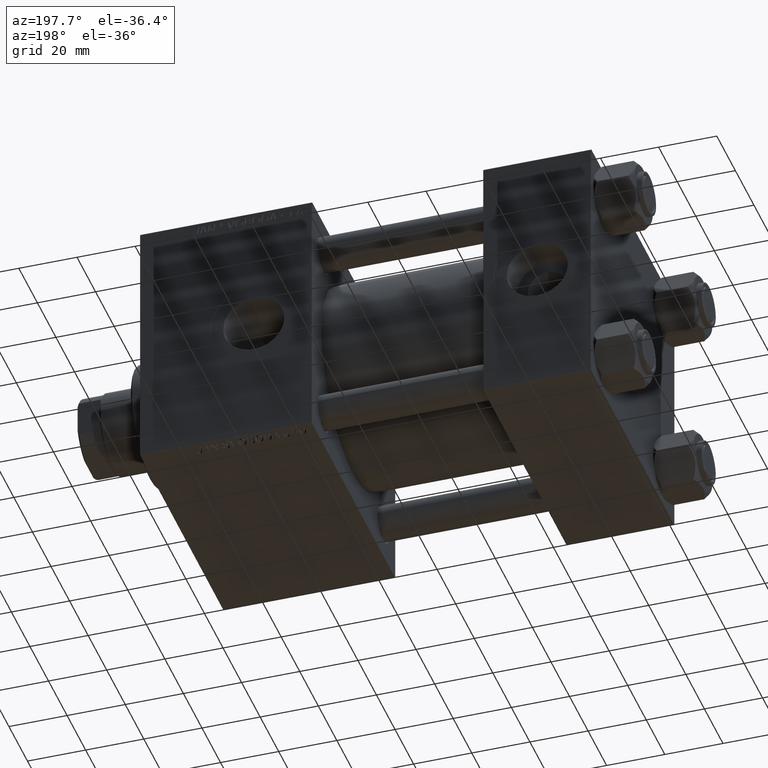
[diagram: clean part render]
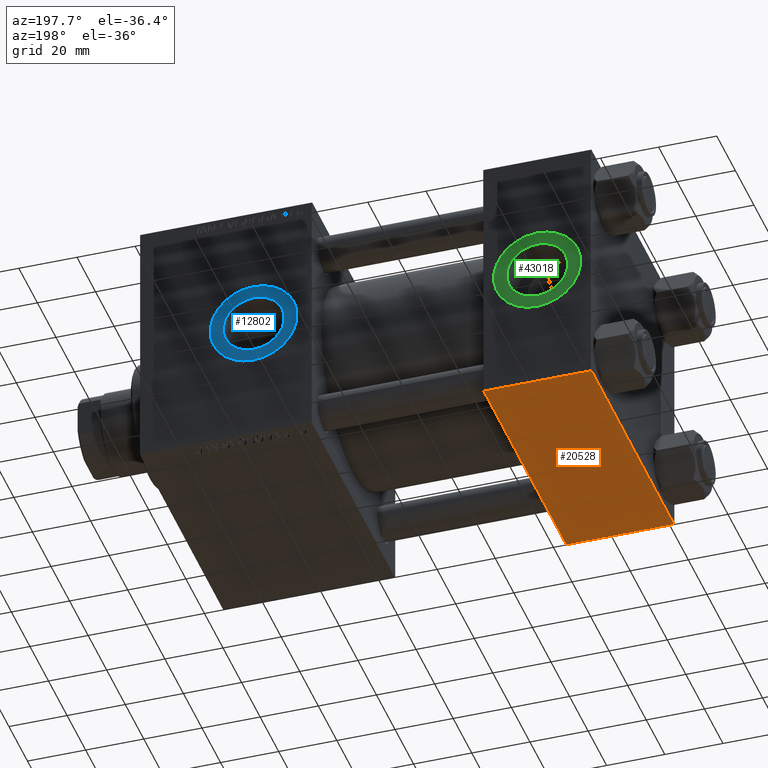
[diagram: same view with three faces highlighted in distinct colors, each labeled with its STEP entity id]
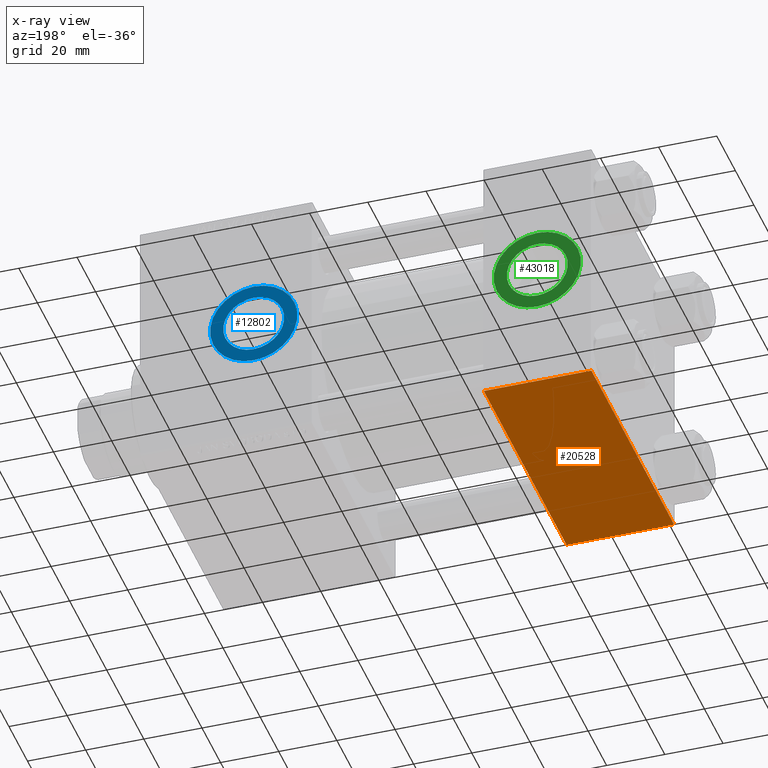
[diagram: x-ray of the same camera — body ghosted, the three highlighted faces saturated]
A machine part, auxiliary view with three faces highlighted in distinct colors.
The next image is the same camera in x-ray (body ghosted, the three faces saturated) — at least one of them is partly hidden behind the body in this view.
Their STEP definitions:

[orange] entity #20528 — the highlighted planar face has unit normal (0, 0, -1).
#557 = DIRECTION ( 'NONE',  ( -1.000000000000000000, 0.000000000000000000, 0.000000000000000000 ) ) ;
#879 = ORIENTED_EDGE ( 'NONE', *, *, #21745, .T. ) ;
#4583 = LINE ( 'NONE', #27667, #48616 ) ;
#7368 = LINE ( 'NONE', #10942, #8276 ) ;
#7626 = EDGE_CURVE ( 'NONE', #25748, #28701, #7368, .T. ) ;
#8276 = VECTOR ( 'NONE', #30725, 1000.000000000000000 ) ;
#8909 = LINE ( 'NONE', #27965, #47977 ) ;
#9617 = CARTESIAN_POINT ( 'NONE',  ( 0.000000000000000000, -44.49999999999994316, -45.00000000000000000 ) ) ;
#10942 = CARTESIAN_POINT ( 'NONE',  ( 37.00000000000000000, 45.00000000000000000, -44.99999999999999289 ) ) ;
#13850 = VECTOR ( 'NONE', #34388, 1000.000000000000000 ) ;
#14016 = CARTESIAN_POINT ( 'NONE',  ( 37.00000000000000000, 44.50000000000000000, -44.99999999999999289 ) ) ;
#16036 = ORIENTED_EDGE ( 'NONE', *, *, #7626, .T. ) ;
#16260 = PLANE ( 'NONE',  #21955 ) ;
#17073 = EDGE_CURVE ( 'NONE', #27114, #17296, #4583, .T. ) ;
#17296 = VERTEX_POINT ( 'NONE', #9617 ) ;
#18354 = EDGE_LOOP ( 'NONE', ( #49178, #20924, #16036, #879 ) ) ;
#20528 = ADVANCED_FACE ( 'NONE', ( #24640 ), #16260, .T. ) ;
#20924 = ORIENTED_EDGE ( 'NONE', *, *, #21258, .T. ) ;
#21258 = EDGE_CURVE ( 'NONE', #27114, #25748, #42264, .T. ) ;
#21745 = EDGE_CURVE ( 'NONE', #28701, #17296, #8909, .T. ) ;
#21955 = AXIS2_PLACEMENT_3D ( 'NONE', #40158, #31760, #47522 ) ;
#24640 = FACE_OUTER_BOUND ( 'NONE', #18354, .T. ) ;
#25748 = VERTEX_POINT ( 'NONE', #14016 ) ;
#27114 = VERTEX_POINT ( 'NONE', #32961 ) ;
#27273 = CARTESIAN_POINT ( 'NONE',  ( 37.00000000000000000, 44.50000000000000000, -44.99999999999999289 ) ) ;
#27667 = CARTESIAN_POINT ( 'NONE',  ( 0.000000000000000000, 45.00000000000000000, -44.99999999999999289 ) ) ;
#27965 = CARTESIAN_POINT ( 'NONE',  ( 0.000000000000000000, -44.49999999999997158, -45.00000000000000000 ) ) ;
#28701 = VERTEX_POINT ( 'NONE', #49305 ) ;
#30725 = DIRECTION ( 'NONE',  ( 0.000000000000000000, -1.000000000000000000, -7.709882115452476934E-17 ) ) ;
#31760 = DIRECTION ( 'NONE',  ( 0.000000000000000000, 7.709882115452478166E-17, -1.000000000000000000 ) ) ;
#32961 = CARTESIAN_POINT ( 'NONE',  ( 0.000000000000000000, 44.50000000000000000, -44.99999999999999289 ) ) ;
#34388 = DIRECTION ( 'NONE',  ( 1.000000000000000000, 0.000000000000000000, 0.000000000000000000 ) ) ;
#38358 = DIRECTION ( 'NONE',  ( 0.000000000000000000, -1.000000000000000000, -7.709882115452476934E-17 ) ) ;
#40158 = CARTESIAN_POINT ( 'NONE',  ( 37.00000000000000000, 45.00000000000000000, -44.99999999999999289 ) ) ;
#42264 = LINE ( 'NONE', #27273, #13850 ) ;
#47522 = DIRECTION ( 'NONE',  ( 0.000000000000000000, 1.000000000000000000, 7.709882115452478166E-17 ) ) ;
#47977 = VECTOR ( 'NONE', #557, 1000.000000000000000 ) ;
#48616 = VECTOR ( 'NONE', #38358, 1000.000000000000000 ) ;
#49178 = ORIENTED_EDGE ( 'NONE', *, *, #17073, .F. ) ;
#49305 = CARTESIAN_POINT ( 'NONE',  ( 37.00000000000000000, -44.49999999999994316, -45.00000000000000000 ) ) ;

[blue] entity #12802 — the highlighted planar face has unit normal (0, 1, 0).
#21 = VERTEX_POINT ( 'NONE', #18347 ) ;
#1612 = EDGE_LOOP ( 'NONE', ( #24445, #43011 ) ) ;
#2690 = DIRECTION ( 'NONE',  ( 0.000000000000000000, 1.000000000000000000, 0.000000000000000000 ) ) ;
#3077 = DIRECTION ( 'NONE',  ( 0.000000000000000000, 1.000000000000000000, 0.000000000000000000 ) ) ;
#6247 = FACE_OUTER_BOUND ( 'NONE', #24860, .T. ) ;
#8418 = DIRECTION ( 'NONE',  ( 0.000000000000000000, 1.000000000000000000, 0.000000000000000000 ) ) ;
#9783 = CARTESIAN_POINT ( 'NONE',  ( 116.0000000000000000, 44.79999999999999005, 10.48000000000000043 ) ) ;
#9973 = EDGE_CURVE ( 'NONE', #41254, #40474, #27019, .T. ) ;
#10068 = DIRECTION ( 'NONE',  ( 0.000000000000000000, -0.000000000000000000, 1.000000000000000000 ) ) ;
#10556 = CARTESIAN_POINT ( 'NONE',  ( 116.0000000000000000, 44.79999999999999716, 0.000000000000000000 ) ) ;
#10583 = DIRECTION ( 'NONE',  ( 0.000000000000000000, 1.000000000000000000, 0.000000000000000000 ) ) ;
#11093 = CIRCLE ( 'NONE', #39503, 15.00000000000001243 ) ;
#12802 = ADVANCED_FACE ( 'NONE', ( #17671, #6247 ), #26036, .T. ) ;
#14251 = VERTEX_POINT ( 'NONE', #48210 ) ;
#17671 = FACE_BOUND ( 'NONE', #1612, .T. ) ;
#18347 = CARTESIAN_POINT ( 'NONE',  ( 116.0000000000000000, 44.79999999999999716, -15.00000000000001243 ) ) ;
#21933 = CIRCLE ( 'NONE', #47953, 15.00000000000001243 ) ;
#24445 = ORIENTED_EDGE ( 'NONE', *, *, #37769, .F. ) ;
#24747 = ORIENTED_EDGE ( 'NONE', *, *, #48116, .T. ) ;
#24860 = EDGE_LOOP ( 'NONE', ( #29781, #24747 ) ) ;
#25090 = DIRECTION ( 'NONE',  ( 0.000000000000000000, 1.000000000000000000, 0.000000000000000000 ) ) ;
#25617 = AXIS2_PLACEMENT_3D ( 'NONE', #41687, #3077, #45489 ) ;
#26036 = PLANE ( 'NONE',  #34371 ) ;
#27019 = CIRCLE ( 'NONE', #34297, 10.48000000000000043 ) ;
#29781 = ORIENTED_EDGE ( 'NONE', *, *, #39124, .T. ) ;
#34297 = AXIS2_PLACEMENT_3D ( 'NONE', #40125, #25090, #43665 ) ;
#34371 = AXIS2_PLACEMENT_3D ( 'NONE', #10556, #2690, #10068 ) ;
#37498 = CARTESIAN_POINT ( 'NONE',  ( 116.0000000000000000, 44.79999999999999716, 0.000000000000000000 ) ) ;
#37769 = EDGE_CURVE ( 'NONE', #40474, #41254, #47547, .T. ) ;
#39124 = EDGE_CURVE ( 'NONE', #14251, #21, #11093, .T. ) ;
#39503 = AXIS2_PLACEMENT_3D ( 'NONE', #37498, #10583, #49697 ) ;
#40125 = CARTESIAN_POINT ( 'NONE',  ( 116.0000000000000000, 44.79999999999999005, 0.000000000000000000 ) ) ;
#40474 = VERTEX_POINT ( 'NONE', #9783 ) ;
#41254 = VERTEX_POINT ( 'NONE', #46487 ) ;
#41687 = CARTESIAN_POINT ( 'NONE',  ( 116.0000000000000000, 44.79999999999999005, 0.000000000000000000 ) ) ;
#43011 = ORIENTED_EDGE ( 'NONE', *, *, #9973, .F. ) ;
#43221 = CARTESIAN_POINT ( 'NONE',  ( 116.0000000000000000, 44.79999999999999716, 0.000000000000000000 ) ) ;
#43665 = DIRECTION ( 'NONE',  ( 0.000000000000000000, 0.000000000000000000, 1.000000000000000000 ) ) ;
#45489 = DIRECTION ( 'NONE',  ( 0.000000000000000000, 0.000000000000000000, 1.000000000000000000 ) ) ;
#46487 = CARTESIAN_POINT ( 'NONE',  ( 116.0000000000000000, 44.79999999999999005, -10.48000000000000043 ) ) ;
#46539 = DIRECTION ( 'NONE',  ( 0.000000000000000000, 0.000000000000000000, 1.000000000000000000 ) ) ;
#47547 = CIRCLE ( 'NONE', #25617, 10.48000000000000043 ) ;
#47953 = AXIS2_PLACEMENT_3D ( 'NONE', #43221, #8418, #46539 ) ;
#48116 = EDGE_CURVE ( 'NONE', #21, #14251, #21933, .T. ) ;
#48210 = CARTESIAN_POINT ( 'NONE',  ( 116.0000000000000000, 44.79999999999999716, 15.00000000000001243 ) ) ;
#49697 = DIRECTION ( 'NONE',  ( 0.000000000000000000, 0.000000000000000000, 1.000000000000000000 ) ) ;

[green] entity #43018 — the highlighted planar face has unit normal (0, 1, 0).
#124 = DIRECTION ( 'NONE',  ( 0.000000000000000000, 0.000000000000000000, 1.000000000000000000 ) ) ;
#164 = AXIS2_PLACEMENT_3D ( 'NONE', #8232, #45849, #124 ) ;
#1406 = DIRECTION ( 'NONE',  ( 0.000000000000000000, 0.000000000000000000, 1.000000000000000000 ) ) ;
#1470 = ORIENTED_EDGE ( 'NONE', *, *, #38512, .F. ) ;
#2485 = CARTESIAN_POINT ( 'NONE',  ( 18.50000000000000000, 44.79999999999999716, 10.48000000000000043 ) ) ;
#3822 = CARTESIAN_POINT ( 'NONE',  ( 18.50000000000000000, 44.79999999999999716, -10.48000000000000043 ) ) ;
#5239 = DIRECTION ( 'NONE',  ( 0.000000000000000000, 0.000000000000000000, 1.000000000000000000 ) ) ;
#8232 = CARTESIAN_POINT ( 'NONE',  ( 18.50000000000000000, 44.79999999999999716, 0.000000000000000000 ) ) ;
#8665 = AXIS2_PLACEMENT_3D ( 'NONE', #14832, #44817, #37189 ) ;
#9542 = DIRECTION ( 'NONE',  ( 0.000000000000000000, 0.000000000000000000, 1.000000000000000000 ) ) ;
#10102 = ORIENTED_EDGE ( 'NONE', *, *, #23065, .T. ) ;
#11445 = VERTEX_POINT ( 'NONE', #3822 ) ;
#11515 = VERTEX_POINT ( 'NONE', #24121 ) ;
#11959 = CARTESIAN_POINT ( 'NONE',  ( 18.50000000000000000, 44.79999999999999716, 15.00000000000000178 ) ) ;
#12317 = CIRCLE ( 'NONE', #164, 15.00000000000000178 ) ;
#12605 = CARTESIAN_POINT ( 'NONE',  ( 18.50000000000000000, 44.79999999999999716, 0.000000000000000000 ) ) ;
#12704 = CIRCLE ( 'NONE', #41074, 10.48000000000000043 ) ;
#13107 = CARTESIAN_POINT ( 'NONE',  ( 18.50000000000000000, 44.79999999999999716, 0.000000000000000000 ) ) ;
#13896 = CIRCLE ( 'NONE', #14684, 15.00000000000000178 ) ;
#14573 = PLANE ( 'NONE',  #8665 ) ;
#14684 = AXIS2_PLACEMENT_3D ( 'NONE', #13107, #32897, #9542 ) ;
#14832 = CARTESIAN_POINT ( 'NONE',  ( 18.50000000000000000, 44.79999999999999716, 0.000000000000000000 ) ) ;
#16367 = VERTEX_POINT ( 'NONE', #2485 ) ;
#21224 = EDGE_LOOP ( 'NONE', ( #35989, #10102 ) ) ;
#23065 = EDGE_CURVE ( 'NONE', #11515, #32067, #12317, .T. ) ;
#24121 = CARTESIAN_POINT ( 'NONE',  ( 18.50000000000000355, 44.79999999999999716, -15.00000000000000178 ) ) ;
#24522 = CARTESIAN_POINT ( 'NONE',  ( 18.50000000000000000, 44.79999999999999716, 0.000000000000000000 ) ) ;
#28076 = DIRECTION ( 'NONE',  ( 0.000000000000000000, 1.000000000000000000, 0.000000000000000000 ) ) ;
#28574 = DIRECTION ( 'NONE',  ( 0.000000000000000000, 1.000000000000000000, 0.000000000000000000 ) ) ;
#29308 = FACE_OUTER_BOUND ( 'NONE', #21224, .T. ) ;
#32067 = VERTEX_POINT ( 'NONE', #11959 ) ;
#32897 = DIRECTION ( 'NONE',  ( 0.000000000000000000, 1.000000000000000000, 0.000000000000000000 ) ) ;
#35024 = ORIENTED_EDGE ( 'NONE', *, *, #39413, .F. ) ;
#35989 = ORIENTED_EDGE ( 'NONE', *, *, #48731, .T. ) ;
#37006 = AXIS2_PLACEMENT_3D ( 'NONE', #12605, #28076, #1406 ) ;
#37189 = DIRECTION ( 'NONE',  ( 0.000000000000000000, -0.000000000000000000, 1.000000000000000000 ) ) ;
#38512 = EDGE_CURVE ( 'NONE', #11445, #16367, #42718, .T. ) ;
#39413 = EDGE_CURVE ( 'NONE', #16367, #11445, #12704, .T. ) ;
#41074 = AXIS2_PLACEMENT_3D ( 'NONE', #24522, #28574, #5239 ) ;
#42718 = CIRCLE ( 'NONE', #37006, 10.48000000000000043 ) ;
#43018 = ADVANCED_FACE ( 'NONE', ( #49630, #29308 ), #14573, .T. ) ;
#44817 = DIRECTION ( 'NONE',  ( 0.000000000000000000, 1.000000000000000000, 0.000000000000000000 ) ) ;
#45849 = DIRECTION ( 'NONE',  ( 0.000000000000000000, 1.000000000000000000, 0.000000000000000000 ) ) ;
#47843 = EDGE_LOOP ( 'NONE', ( #35024, #1470 ) ) ;
#48731 = EDGE_CURVE ( 'NONE', #32067, #11515, #13896, .T. ) ;
#49630 = FACE_BOUND ( 'NONE', #47843, .T. ) ;